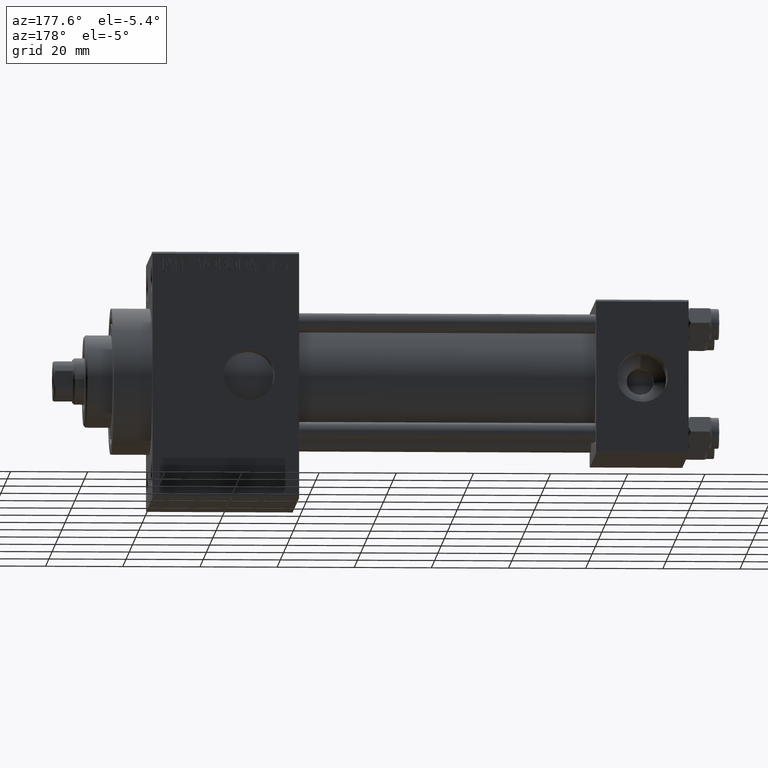
[diagram: clean part render]
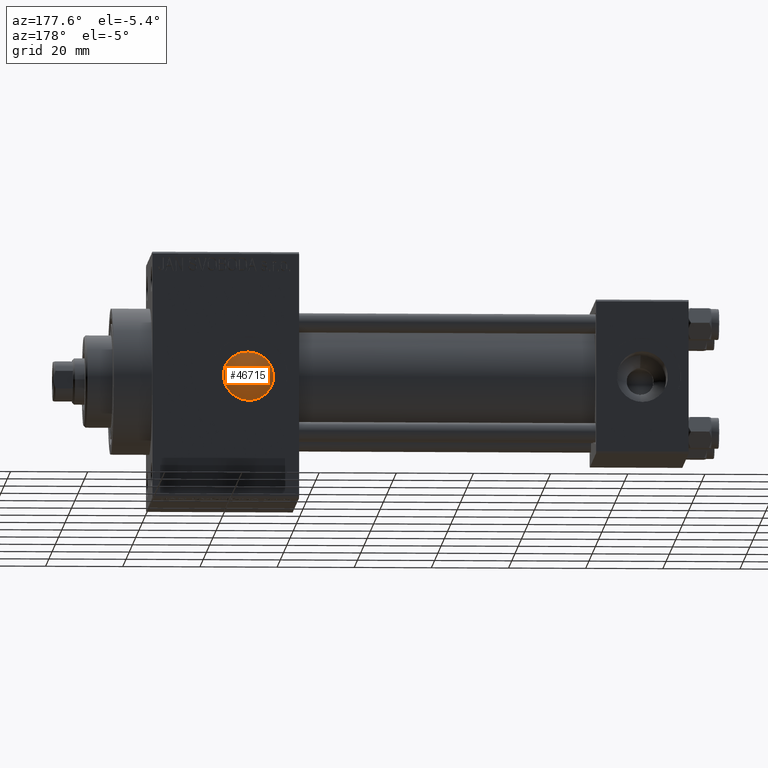
[diagram: same view with one face highlighted and labeled with its STEP entity id]
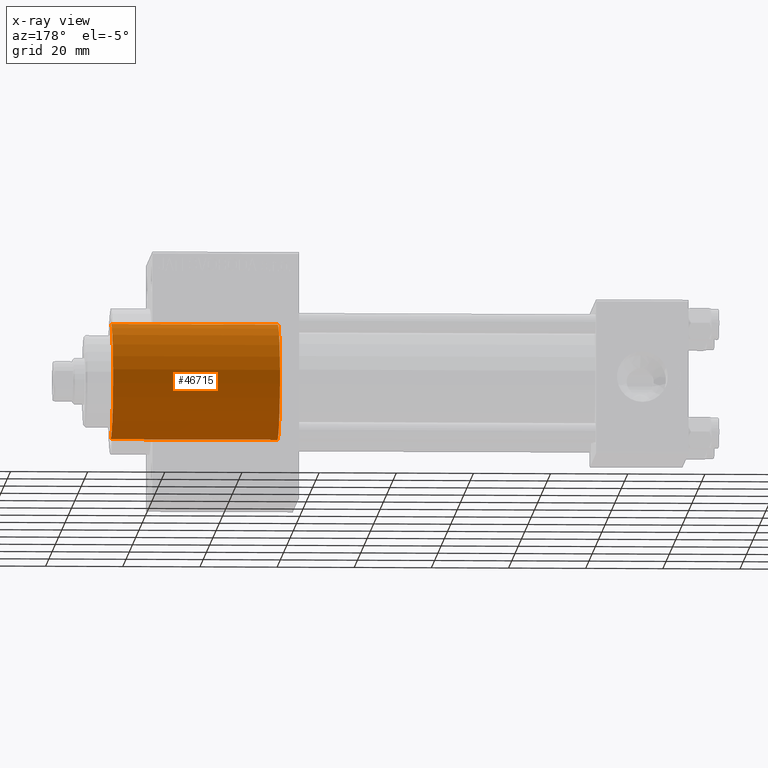
[diagram: x-ray of the same camera — body ghosted, the highlighted face saturated]
A machine part, auxiliary view. The second image highlights one B-rep face of the part: STEP entity #46715.
The next image is the same camera in x-ray: the body ghosted, the highlighted face saturated — about 0% of this face is hidden behind the body in this view.
In plain terms, the highlighted cylindrical surface (partial cylindrical patch) has radius 15 mm, axis along (-1, 0, 0).
Its self-contained STEP definition (entity closure, byte-faithful):
#3838 = ORIENTED_EDGE ( 'NONE', *, *, #44491, .F. ) ;
#4274 = DIRECTION ( 'NONE',  ( -0.000000000000000000, -0.000000000000000000, -1.000000000000000000 ) ) ;
#7787 = DIRECTION ( 'NONE',  ( -1.000000000000000000, 0.000000000000000000, 0.000000000000000000 ) ) ;
#10028 = VECTOR ( 'NONE', #22561, 1000.000000000000000 ) ;
#10706 = ORIENTED_EDGE ( 'NONE', *, *, #41293, .T. ) ;
#14182 = DIRECTION ( 'NONE',  ( 1.000000000000000000, 0.000000000000000000, 0.000000000000000000 ) ) ;
#15675 = LINE ( 'NONE', #30790, #36125 ) ;
#15712 = CARTESIAN_POINT ( 'NONE',  ( -15.00000000000000000, 0.000000000000000000, 43.25999999999999801 ) ) ;
#18727 = EDGE_CURVE ( 'NONE', #33050, #31781, #15675, .T. ) ;
#18895 = EDGE_CURVE ( 'NONE', #32264, #20276, #21584, .T. ) ;
#19423 = CARTESIAN_POINT ( 'NONE',  ( 0.000000000000000000, 0.000000000000000000, 43.25999999999999801 ) ) ;
#20276 = VERTEX_POINT ( 'NONE', #42864 ) ;
#21092 = DIRECTION ( 'NONE',  ( 0.000000000000000000, 0.000000000000000000, 1.000000000000000000 ) ) ;
#21584 = LINE ( 'NONE', #41357, #10028 ) ;
#21603 = ORIENTED_EDGE ( 'NONE', *, *, #18895, .F. ) ;
#21755 = AXIS2_PLACEMENT_3D ( 'NONE', #36193, #21092, #40145 ) ;
#22561 = DIRECTION ( 'NONE',  ( -0.000000000000000000, -0.000000000000000000, -1.000000000000000000 ) ) ;
#23071 = EDGE_LOOP ( 'NONE', ( #21603, #3838, #43699, #10706 ) ) ;
#25086 = CARTESIAN_POINT ( 'NONE',  ( -15.00000000000000000, 0.000000000000000000, 0.000000000000000000 ) ) ;
#29641 = CIRCLE ( 'NONE', #21755, 15.00000000000000000 ) ;
#29739 = CARTESIAN_POINT ( 'NONE',  ( 15.00000000000000000, 1.836970198721029589E-15, 43.25999999999999801 ) ) ;
#30790 = CARTESIAN_POINT ( 'NONE',  ( -15.00000000000000000, 0.000000000000000000, 43.25999999999999801 ) ) ;
#31781 = VERTEX_POINT ( 'NONE', #25086 ) ;
#32264 = VERTEX_POINT ( 'NONE', #29739 ) ;
#32898 = AXIS2_PLACEMENT_3D ( 'NONE', #19423, #38485, #7787 ) ;
#33050 = VERTEX_POINT ( 'NONE', #15712 ) ;
#33255 = CARTESIAN_POINT ( 'NONE',  ( 0.000000000000000000, 0.000000000000000000, 0.000000000000000000 ) ) ;
#36125 = VECTOR ( 'NONE', #4274, 1000.000000000000000 ) ;
#36193 = CARTESIAN_POINT ( 'NONE',  ( 0.000000000000000000, 0.000000000000000000, 43.25999999999999801 ) ) ;
#38485 = DIRECTION ( 'NONE',  ( -0.000000000000000000, -0.000000000000000000, -1.000000000000000000 ) ) ;
#38734 = FACE_OUTER_BOUND ( 'NONE', #23071, .T. ) ;
#40145 = DIRECTION ( 'NONE',  ( 1.000000000000000000, 0.000000000000000000, 0.000000000000000000 ) ) ;
#41293 = EDGE_CURVE ( 'NONE', #31781, #20276, #42172, .T. ) ;
#41357 = CARTESIAN_POINT ( 'NONE',  ( 15.00000000000000000, 1.836970198721029589E-15, 43.25999999999999801 ) ) ;
#41707 = CYLINDRICAL_SURFACE ( 'NONE', #32898, 15.00000000000000000 ) ;
#42172 = CIRCLE ( 'NONE', #48472, 15.00000000000000000 ) ;
#42864 = CARTESIAN_POINT ( 'NONE',  ( 15.00000000000000000, 1.836970198721029589E-15, 0.000000000000000000 ) ) ;
#43699 = ORIENTED_EDGE ( 'NONE', *, *, #18727, .T. ) ;
#44491 = EDGE_CURVE ( 'NONE', #33050, #32264, #29641, .T. ) ;
#46715 = ADVANCED_FACE ( 'NONE', ( #38734 ), #41707, .T. ) ;
#48313 = DIRECTION ( 'NONE',  ( 0.000000000000000000, 0.000000000000000000, 1.000000000000000000 ) ) ;
#48472 = AXIS2_PLACEMENT_3D ( 'NONE', #33255, #48313, #14182 ) ;